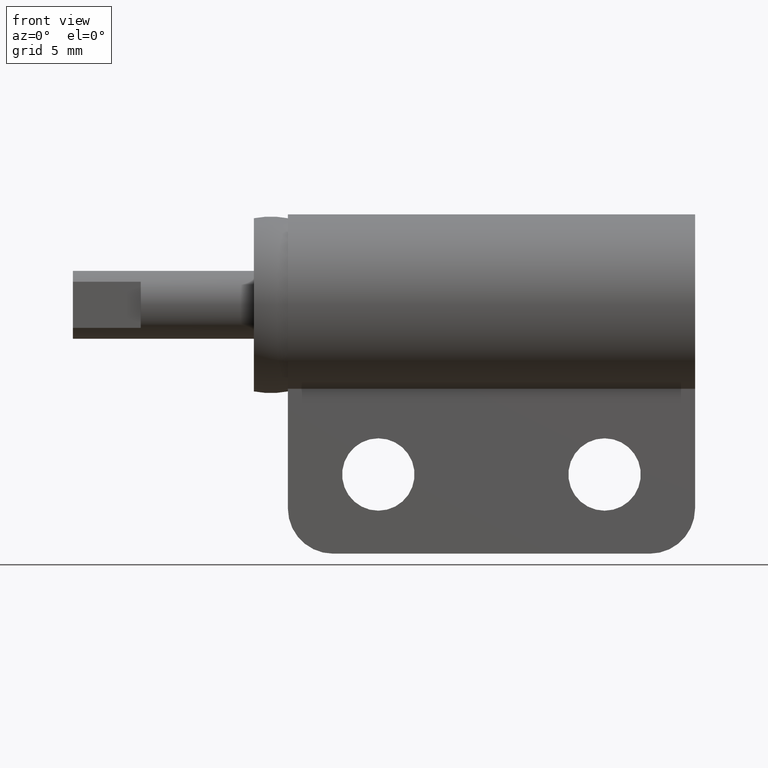
[diagram: clean part render]
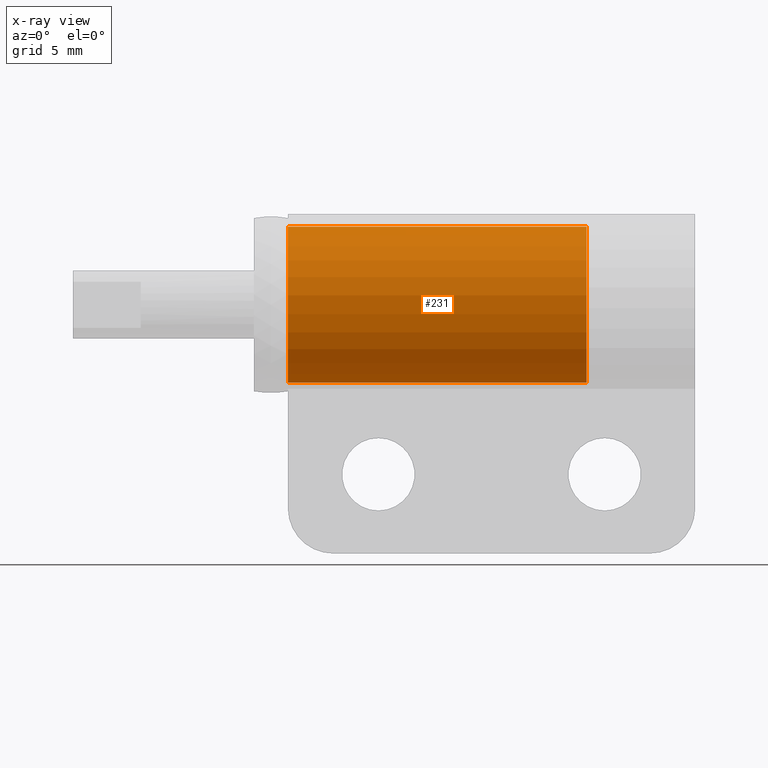
[diagram: x-ray — body ghosted, one internal face saturated and labeled with its STEP entity id]
A machine part, front view, then the same camera in x-ray: the body is ghosted and one INTERNAL B-rep face — a face not visible from any outside direction — is saturated and labeled: STEP entity #231.
In plain terms, the highlighted cylindrical surface (partial cylindrical patch) has radius 3.45 mm, axis along (1, -0, 0).
Its self-contained STEP definition (entity closure, byte-faithful):
#231=ADVANCED_FACE('',(#373),#372,.T.);
#372=CYLINDRICAL_SURFACE('',#1019,3.45000000000E+00);
#373=FACE_OUTER_BOUND('',#1020,.T.);
#1016=CARTESIAN_POINT('',(1.97000000000E+01,-1.89978816963E-15,1.13864687165E-30));
#1017=DIRECTION('',(1.00000000000E+00,-5.14886040406E-16,1.60580345769E-31));
#1018=DIRECTION('',(-5.07162431418E-31,-6.73123872956E-16,1.00000000000E+00));
#1019=AXIS2_PLACEMENT_3D('',#1016,#1017,#1018);
#1020=EDGE_LOOP('',(#1395,#1396,#1397,#1398));
#1395=ORIENTED_EDGE('',*,*,#1682,.T.);
#1396=ORIENTED_EDGE('',*,*,#1685,.T.);
#1397=ORIENTED_EDGE('',*,*,#1684,.T.);
#1398=ORIENTED_EDGE('',*,*,#1686,.T.);
#1682=EDGE_CURVE('',#1932,#1925,#1933,.T.);
#1684=EDGE_CURVE('',#1924,#1939,#1946,.T.);
#1685=EDGE_CURVE('',#1925,#1924,#1952,.T.);
#1686=EDGE_CURVE('',#1939,#1932,#1958,.T.);
#1924=VERTEX_POINT('',#2888);
#1925=VERTEX_POINT('',#2889);
#1932=VERTEX_POINT('',#2894);
#1933=LINE('',#2895,#2896);
#1939=VERTEX_POINT('',#2898);
#1946=LINE('',#2903,#2904);
#1952=CIRCLE('',#2909,3.45000000000E+00);
#1958=CIRCLE('',#2913,3.45000000000E+00);
#2888=CARTESIAN_POINT('',(1.97000000000E+01,-8.44992337775E-16,3.45000000000E+00));
#2889=CARTESIAN_POINT('',(1.97000000000E+01,4.22489192069E-16,-3.45000000000E+00));
#2894=CARTESIAN_POINT('',(6.50000000000E+00,-8.44978384137E-16,-3.45000000000E+00));
#2895=CARTESIAN_POINT('',(6.50000000000E+00,4.22489192069E-16,-3.45000000000E+00));
#2896=VECTOR('',#2897,1.32000000000E+01);
#2897=DIRECTION('',(1.00000000000E+00,0.00000000000E+00,0.00000000000E+00));
#2898=CARTESIAN_POINT('',(6.50000000000E+00,4.22489192069E-16,3.45000000000E+00));
#2903=CARTESIAN_POINT('',(1.97000000000E+01,0.00000000000E+00,3.45000000000E+00));
#2904=VECTOR('',#2905,1.32000000000E+01);
#2905=DIRECTION('',(-1.00000000000E+00,0.00000000000E+00,0.00000000000E+00));
#2906=CARTESIAN_POINT('',(1.97000000000E+01,0.00000000000E+00,0.00000000000E+00));
#2907=DIRECTION('',(-1.00000000000E+00,0.00000000000E+00,0.00000000000E+00));
#2908=DIRECTION('',(-0.00000000000E+00,-1.22460635382E-16,1.00000000000E+00));
#2909=AXIS2_PLACEMENT_3D('',#2906,#2907,#2908);
#2910=CARTESIAN_POINT('',(6.50000000000E+00,0.00000000000E+00,0.00000000000E+00));
#2911=DIRECTION('',(1.00000000000E+00,0.00000000000E+00,-0.00000000000E+00));
#2912=DIRECTION('',(-0.00000000000E+00,-0.00000000000E+00,-1.00000000000E+00));
#2913=AXIS2_PLACEMENT_3D('',#2910,#2911,#2912);